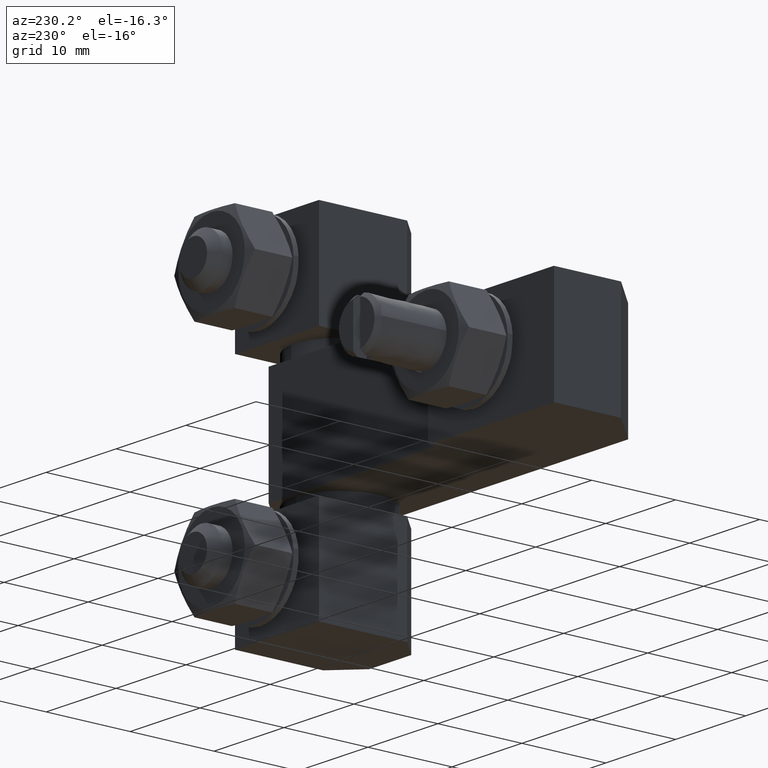
[diagram: clean part render]
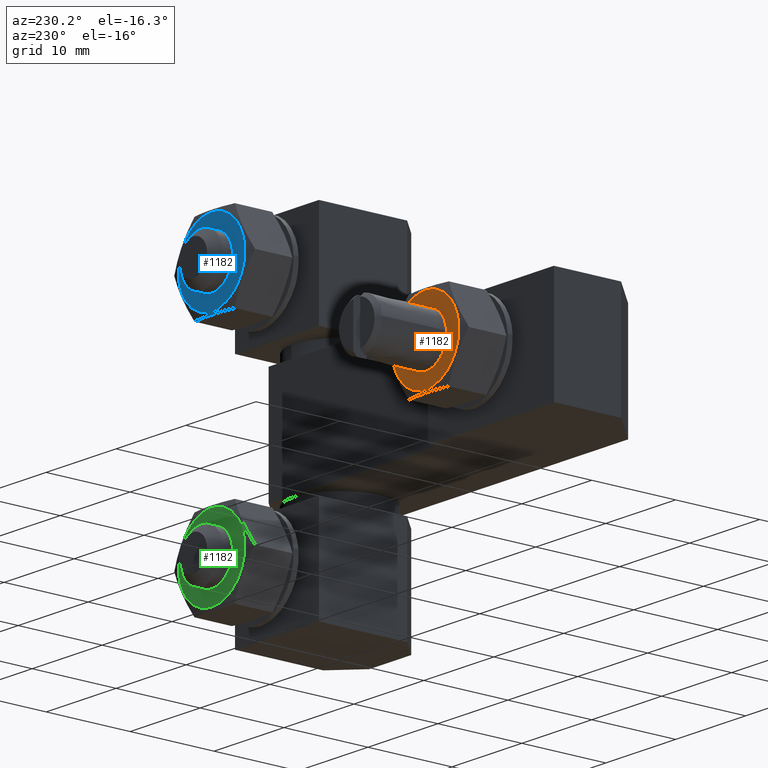
[diagram: same view with three faces highlighted in distinct colors, each labeled with its STEP entity id]
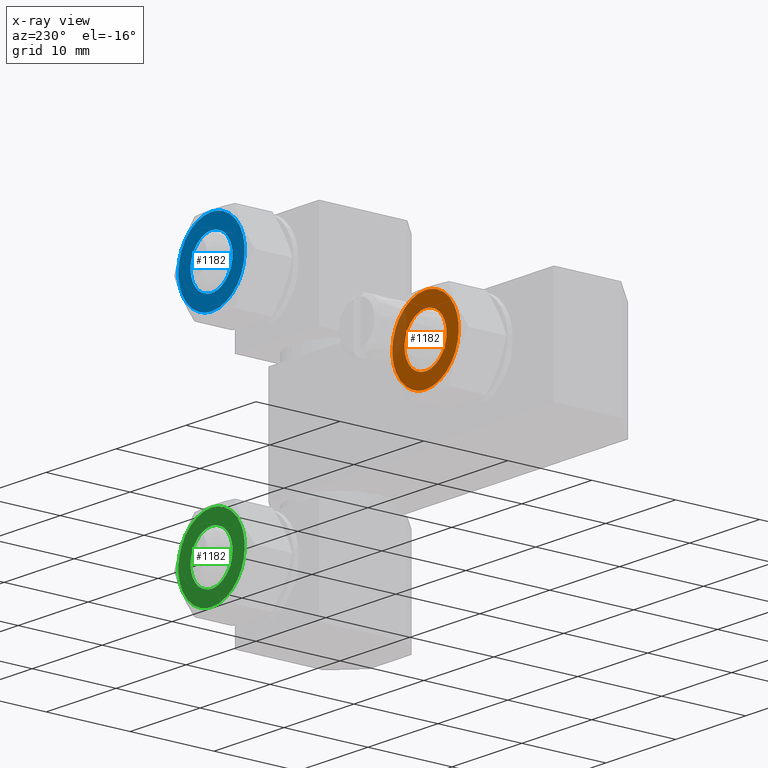
[diagram: x-ray of the same camera — body ghosted, the three highlighted faces saturated]
A machine part, auxiliary view with three faces highlighted in distinct colors.
The next image is the same camera in x-ray (body ghosted, the three faces saturated) — at least one of them is partly hidden behind the body in this view.
Their STEP definitions:

[orange] entity #1182 — the highlighted face is a freeform B-spline surface patch.
#741=CARTESIAN_POINT('',(9.932544E-014,15.300000561215050,1.249999276718710));
#742=VERTEX_POINT('',#741);
#743=CARTESIAN_POINT('',(-4.223919936372676,15.300000561211620,8.172788804313976));
#744=VERTEX_POINT('',#743);
#745=CARTESIAN_POINT('',(9.932544E-014,15.300000561215050,1.249999276718710));
#746=CARTESIAN_POINT('',(-4.750001008265811,15.300000561215056,1.249999276718710));
#747=CARTESIAN_POINT('',(-4.750001008265810,15.300000561215050,6.000000284984620));
#748=CARTESIAN_POINT('',(-4.750001008265810,15.300000561215047,7.150082587002821));
#749=CARTESIAN_POINT('',(-4.223919936372676,15.300000561211627,8.172788804313976));
#757=(BOUNDED_CURVE()B_SPLINE_CURVE(2,(#745,#746,#747,#748,#749),.UNSPECIFIED.,.F.,.U.)B_SPLINE_CURVE_WITH_KNOTS((3,2,3),(0.500000000000000,0.750000000000000,0.827800589169025),.UNSPECIFIED.)CURVE()GEOMETRIC_REPRESENTATION_ITEM()RATIONAL_B_SPLINE_CURVE((1.0,0.707106781186548,1.0,0.908850940050805,0.874433484631611))REPRESENTATION_ITEM(''));
#758=EDGE_CURVE('',#742,#744,#757,.T.);
#760=CARTESIAN_POINT('',(4.092739380840212,15.300000561214620,3.589192549170924));
#761=VERTEX_POINT('',#760);
#762=CARTESIAN_POINT('',(4.092739380840213,15.300000561214615,3.589192549170924));
#763=CARTESIAN_POINT('',(2.714849241231466,15.300000561215059,1.249999276718711));
#764=CARTESIAN_POINT('',(9.932544E-014,15.300000561215050,1.249999276718710));
#772=(BOUNDED_CURVE()B_SPLINE_CURVE(2,(#762,#763,#764),.UNSPECIFIED.,.F.,.U.)B_SPLINE_CURVE_WITH_KNOTS((3,3),(0.336609155411223,0.500000000000000),.UNSPECIFIED.)CURVE()GEOMETRIC_REPRESENTATION_ITEM()RATIONAL_B_SPLINE_CURVE((0.867367237173769,0.808575718414978,1.0))REPRESENTATION_ITEM(''));
#773=EDGE_CURVE('',#761,#742,#772,.T.);
#867=CARTESIAN_POINT('',(9.932544E-014,15.300000561215050,10.750001293250531));
#868=VERTEX_POINT('',#867);
#869=CARTESIAN_POINT('',(-4.223919936372676,15.300000561211618,8.172788804313976));
#870=CARTESIAN_POINT('',(-2.898199327888476,15.300000561215047,10.750001293250529));
#871=CARTESIAN_POINT('',(9.932544E-014,15.300000561215050,10.750001293250531));
#879=(BOUNDED_CURVE()B_SPLINE_CURVE(2,(#869,#870,#871),.UNSPECIFIED.,.F.,.U.)B_SPLINE_CURVE_WITH_KNOTS((3,3),(0.827800589169024,1.0),.UNSPECIFIED.)CURVE()GEOMETRIC_REPRESENTATION_ITEM()RATIONAL_B_SPLINE_CURVE((0.874433484631612,0.798255841135742,1.0))REPRESENTATION_ITEM(''));
#880=EDGE_CURVE('',#744,#868,#879,.T.);
#939=CARTESIAN_POINT('',(9.932544E-014,15.300000561215050,10.750001293250531));
#940=CARTESIAN_POINT('',(4.750001008266010,15.300000561215056,10.750001293250531));
#941=CARTESIAN_POINT('',(4.750001008266009,15.300000561215050,6.000000284984620));
#942=CARTESIAN_POINT('',(4.750001008266009,15.300000561215048,4.705001373782181));
#943=CARTESIAN_POINT('',(4.092739380840213,15.300000561214615,3.589192549170924));
#951=(BOUNDED_CURVE()B_SPLINE_CURVE(2,(#939,#940,#941,#942,#943),.UNSPECIFIED.,.F.,.U.)B_SPLINE_CURVE_WITH_KNOTS((3,2,3),(0.0,0.250000000000000,0.336609155411223),.UNSPECIFIED.)CURVE()GEOMETRIC_REPRESENTATION_ITEM()RATIONAL_B_SPLINE_CURVE((1.0,0.707106781186548,1.0,0.898531062771570,0.867367237173769))REPRESENTATION_ITEM(''));
#952=EDGE_CURVE('',#868,#761,#951,.T.);
#1017=CARTESIAN_POINT('',(2.994403946826906,15.300000561215050,5.816860130899042));
#1018=VERTEX_POINT('',#1017);
#1024=CARTESIAN_POINT('',(-0.000000782652990,15.300000561215050,3.000000284984540));
#1025=VERTEX_POINT('',#1024);
#1026=CARTESIAN_POINT('',(-0.000000782652990,15.300000561215050,3.000000284984540));
#1027=CARTESIAN_POINT('',(2.822122577804138,15.300000561215048,3.000000284984540));
#1028=CARTESIAN_POINT('',(2.994403946826906,15.300000561215052,5.816860130899042));
#1036=(BOUNDED_CURVE()B_SPLINE_CURVE(2,(#1026,#1027,#1028),.UNSPECIFIED.,.F.,.U.)B_SPLINE_CURVE_WITH_KNOTS((3,3),(0.500000000000000,0.739333277124436),.UNSPECIFIED.)CURVE()GEOMETRIC_REPRESENTATION_ITEM()RATIONAL_B_SPLINE_CURVE((1.0,0.719603624375408,0.976072716527199))REPRESENTATION_ITEM(''));
#1037=EDGE_CURVE('',#1025,#1018,#1036,.T.);
#1039=CARTESIAN_POINT('',(-2.979029361741232,15.300000561215050,6.354102988978008));
#1040=VERTEX_POINT('',#1039);
#1041=CARTESIAN_POINT('',(-2.979029361741232,15.300000561215052,6.354102988978009));
#1042=CARTESIAN_POINT('',(-3.000000782652990,15.300000561215047,6.177672643963709));
#1043=CARTESIAN_POINT('',(-3.000000782652990,15.300000561215050,6.000000284984540));
#1044=CARTESIAN_POINT('',(-3.000000782652990,15.300000561215056,3.000000284984540));
#1045=CARTESIAN_POINT('',(-0.000000782652990,15.300000561215050,3.000000284984540));
#1053=(BOUNDED_CURVE()B_SPLINE_CURVE(2,(#1041,#1042,#1043,#1044,#1045),.UNSPECIFIED.,.F.,.U.)B_SPLINE_CURVE_WITH_KNOTS((3,2,3),(0.229562473513013,0.250000000000000,0.500000000000000),.UNSPECIFIED.)CURVE()GEOMETRIC_REPRESENTATION_ITEM()RATIONAL_B_SPLINE_CURVE((0.956026754182728,0.976055948330564,1.0,0.707106781186548,1.0))REPRESENTATION_ITEM(''));
#1054=EDGE_CURVE('',#1040,#1025,#1053,.T.);
#1098=CARTESIAN_POINT('',(-0.000000782652990,15.300000561215050,9.000000284984541));
#1099=VERTEX_POINT('',#1098);
#1100=CARTESIAN_POINT('',(-0.000000782652990,15.300000561215050,9.000000284984541));
#1101=CARTESIAN_POINT('',(-2.664524360465312,15.300000561215057,9.000000284984541));
#1102=CARTESIAN_POINT('',(-2.979029361741232,15.300000561215056,6.354102988978008));
#1110=(BOUNDED_CURVE()B_SPLINE_CURVE(2,(#1100,#1101,#1102),.UNSPECIFIED.,.F.,.U.)B_SPLINE_CURVE_WITH_KNOTS((3,3),(0.0,0.229562473513013),.UNSPECIFIED.)CURVE()GEOMETRIC_REPRESENTATION_ITEM()RATIONAL_B_SPLINE_CURVE((1.0,0.731050832855983,0.956026754182728))REPRESENTATION_ITEM(''));
#1111=EDGE_CURVE('',#1099,#1040,#1110,.T.);
#1113=CARTESIAN_POINT('',(2.994403946826906,15.300000561215052,5.816860130899042));
#1114=CARTESIAN_POINT('',(2.999999217347011,15.300000561215057,5.908344735008918));
#1115=CARTESIAN_POINT('',(2.999999217347011,15.300000561215050,6.000000284984540));
#1116=CARTESIAN_POINT('',(2.999999217347010,15.300000561215056,9.000000284984541));
#1117=CARTESIAN_POINT('',(-0.000000782652990,15.300000561215050,9.000000284984541));
#1125=(BOUNDED_CURVE()B_SPLINE_CURVE(2,(#1113,#1114,#1115,#1116,#1117),.UNSPECIFIED.,.F.,.U.)B_SPLINE_CURVE_WITH_KNOTS((3,2,3),(0.739333277124436,0.750000000000000,1.0),.UNSPECIFIED.)CURVE()GEOMETRIC_REPRESENTATION_ITEM()RATIONAL_B_SPLINE_CURVE((0.976072716527199,0.987503156811140,1.0,0.707106781186548,1.0))REPRESENTATION_ITEM(''));
#1126=EDGE_CURVE('',#1018,#1099,#1125,.T.);
#1165=CARTESIAN_POINT('',(-5.224417158717642,15.300000561215050,11.224526018846561));
#1166=CARTESIAN_POINT('',(5.222500308697768,15.300000561215050,11.224526018846561));
#1167=CARTESIAN_POINT('',(-5.224417158717642,15.300000561215050,0.775473956566221));
#1168=CARTESIAN_POINT('',(5.222500308697768,15.300000561215050,0.775473956566221));
#1169=B_SPLINE_SURFACE_WITH_KNOTS('',1,1,((#1165,#1167),(#1166,#1168)),.UNSPECIFIED.,.F.,.F.,.U.,(2,2),(2,2),(0.0,10.446917467415410),(0.0,10.449052062280339),.UNSPECIFIED.);
#1170=ORIENTED_EDGE('',*,*,#952,.T.);
#1171=ORIENTED_EDGE('',*,*,#773,.T.);
#1172=ORIENTED_EDGE('',*,*,#758,.T.);
#1173=ORIENTED_EDGE('',*,*,#880,.T.);
#1174=EDGE_LOOP('',(#1170,#1171,#1172,#1173));
#1175=FACE_OUTER_BOUND('',#1174,.T.);
#1176=ORIENTED_EDGE('',*,*,#1037,.T.);
#1177=ORIENTED_EDGE('',*,*,#1126,.T.);
#1178=ORIENTED_EDGE('',*,*,#1111,.T.);
#1179=ORIENTED_EDGE('',*,*,#1054,.T.);
#1180=EDGE_LOOP('',(#1176,#1177,#1178,#1179));
#1181=FACE_BOUND('',#1180,.T.);
#1182=ADVANCED_FACE('',(#1175,#1181),#1169,.T.);

[blue] entity #1182 — the highlighted face is a freeform B-spline surface patch.
#741=CARTESIAN_POINT('',(9.932544E-014,15.300000561215050,1.249999276718710));
#742=VERTEX_POINT('',#741);
#743=CARTESIAN_POINT('',(-4.223919936372676,15.300000561211620,8.172788804313976));
#744=VERTEX_POINT('',#743);
#745=CARTESIAN_POINT('',(9.932544E-014,15.300000561215050,1.249999276718710));
#746=CARTESIAN_POINT('',(-4.750001008265811,15.300000561215056,1.249999276718710));
#747=CARTESIAN_POINT('',(-4.750001008265810,15.300000561215050,6.000000284984620));
#748=CARTESIAN_POINT('',(-4.750001008265810,15.300000561215047,7.150082587002821));
#749=CARTESIAN_POINT('',(-4.223919936372676,15.300000561211627,8.172788804313976));
#757=(BOUNDED_CURVE()B_SPLINE_CURVE(2,(#745,#746,#747,#748,#749),.UNSPECIFIED.,.F.,.U.)B_SPLINE_CURVE_WITH_KNOTS((3,2,3),(0.500000000000000,0.750000000000000,0.827800589169025),.UNSPECIFIED.)CURVE()GEOMETRIC_REPRESENTATION_ITEM()RATIONAL_B_SPLINE_CURVE((1.0,0.707106781186548,1.0,0.908850940050805,0.874433484631611))REPRESENTATION_ITEM(''));
#758=EDGE_CURVE('',#742,#744,#757,.T.);
#760=CARTESIAN_POINT('',(4.092739380840212,15.300000561214620,3.589192549170924));
#761=VERTEX_POINT('',#760);
#762=CARTESIAN_POINT('',(4.092739380840213,15.300000561214615,3.589192549170924));
#763=CARTESIAN_POINT('',(2.714849241231466,15.300000561215059,1.249999276718711));
#764=CARTESIAN_POINT('',(9.932544E-014,15.300000561215050,1.249999276718710));
#772=(BOUNDED_CURVE()B_SPLINE_CURVE(2,(#762,#763,#764),.UNSPECIFIED.,.F.,.U.)B_SPLINE_CURVE_WITH_KNOTS((3,3),(0.336609155411223,0.500000000000000),.UNSPECIFIED.)CURVE()GEOMETRIC_REPRESENTATION_ITEM()RATIONAL_B_SPLINE_CURVE((0.867367237173769,0.808575718414978,1.0))REPRESENTATION_ITEM(''));
#773=EDGE_CURVE('',#761,#742,#772,.T.);
#867=CARTESIAN_POINT('',(9.932544E-014,15.300000561215050,10.750001293250531));
#868=VERTEX_POINT('',#867);
#869=CARTESIAN_POINT('',(-4.223919936372676,15.300000561211618,8.172788804313976));
#870=CARTESIAN_POINT('',(-2.898199327888476,15.300000561215047,10.750001293250529));
#871=CARTESIAN_POINT('',(9.932544E-014,15.300000561215050,10.750001293250531));
#879=(BOUNDED_CURVE()B_SPLINE_CURVE(2,(#869,#870,#871),.UNSPECIFIED.,.F.,.U.)B_SPLINE_CURVE_WITH_KNOTS((3,3),(0.827800589169024,1.0),.UNSPECIFIED.)CURVE()GEOMETRIC_REPRESENTATION_ITEM()RATIONAL_B_SPLINE_CURVE((0.874433484631612,0.798255841135742,1.0))REPRESENTATION_ITEM(''));
#880=EDGE_CURVE('',#744,#868,#879,.T.);
#939=CARTESIAN_POINT('',(9.932544E-014,15.300000561215050,10.750001293250531));
#940=CARTESIAN_POINT('',(4.750001008266010,15.300000561215056,10.750001293250531));
#941=CARTESIAN_POINT('',(4.750001008266009,15.300000561215050,6.000000284984620));
#942=CARTESIAN_POINT('',(4.750001008266009,15.300000561215048,4.705001373782181));
#943=CARTESIAN_POINT('',(4.092739380840213,15.300000561214615,3.589192549170924));
#951=(BOUNDED_CURVE()B_SPLINE_CURVE(2,(#939,#940,#941,#942,#943),.UNSPECIFIED.,.F.,.U.)B_SPLINE_CURVE_WITH_KNOTS((3,2,3),(0.0,0.250000000000000,0.336609155411223),.UNSPECIFIED.)CURVE()GEOMETRIC_REPRESENTATION_ITEM()RATIONAL_B_SPLINE_CURVE((1.0,0.707106781186548,1.0,0.898531062771570,0.867367237173769))REPRESENTATION_ITEM(''));
#952=EDGE_CURVE('',#868,#761,#951,.T.);
#1017=CARTESIAN_POINT('',(2.994403946826906,15.300000561215050,5.816860130899042));
#1018=VERTEX_POINT('',#1017);
#1024=CARTESIAN_POINT('',(-0.000000782652990,15.300000561215050,3.000000284984540));
#1025=VERTEX_POINT('',#1024);
#1026=CARTESIAN_POINT('',(-0.000000782652990,15.300000561215050,3.000000284984540));
#1027=CARTESIAN_POINT('',(2.822122577804138,15.300000561215048,3.000000284984540));
#1028=CARTESIAN_POINT('',(2.994403946826906,15.300000561215052,5.816860130899042));
#1036=(BOUNDED_CURVE()B_SPLINE_CURVE(2,(#1026,#1027,#1028),.UNSPECIFIED.,.F.,.U.)B_SPLINE_CURVE_WITH_KNOTS((3,3),(0.500000000000000,0.739333277124436),.UNSPECIFIED.)CURVE()GEOMETRIC_REPRESENTATION_ITEM()RATIONAL_B_SPLINE_CURVE((1.0,0.719603624375408,0.976072716527199))REPRESENTATION_ITEM(''));
#1037=EDGE_CURVE('',#1025,#1018,#1036,.T.);
#1039=CARTESIAN_POINT('',(-2.979029361741232,15.300000561215050,6.354102988978008));
#1040=VERTEX_POINT('',#1039);
#1041=CARTESIAN_POINT('',(-2.979029361741232,15.300000561215052,6.354102988978009));
#1042=CARTESIAN_POINT('',(-3.000000782652990,15.300000561215047,6.177672643963709));
#1043=CARTESIAN_POINT('',(-3.000000782652990,15.300000561215050,6.000000284984540));
#1044=CARTESIAN_POINT('',(-3.000000782652990,15.300000561215056,3.000000284984540));
#1045=CARTESIAN_POINT('',(-0.000000782652990,15.300000561215050,3.000000284984540));
#1053=(BOUNDED_CURVE()B_SPLINE_CURVE(2,(#1041,#1042,#1043,#1044,#1045),.UNSPECIFIED.,.F.,.U.)B_SPLINE_CURVE_WITH_KNOTS((3,2,3),(0.229562473513013,0.250000000000000,0.500000000000000),.UNSPECIFIED.)CURVE()GEOMETRIC_REPRESENTATION_ITEM()RATIONAL_B_SPLINE_CURVE((0.956026754182728,0.976055948330564,1.0,0.707106781186548,1.0))REPRESENTATION_ITEM(''));
#1054=EDGE_CURVE('',#1040,#1025,#1053,.T.);
#1098=CARTESIAN_POINT('',(-0.000000782652990,15.300000561215050,9.000000284984541));
#1099=VERTEX_POINT('',#1098);
#1100=CARTESIAN_POINT('',(-0.000000782652990,15.300000561215050,9.000000284984541));
#1101=CARTESIAN_POINT('',(-2.664524360465312,15.300000561215057,9.000000284984541));
#1102=CARTESIAN_POINT('',(-2.979029361741232,15.300000561215056,6.354102988978008));
#1110=(BOUNDED_CURVE()B_SPLINE_CURVE(2,(#1100,#1101,#1102),.UNSPECIFIED.,.F.,.U.)B_SPLINE_CURVE_WITH_KNOTS((3,3),(0.0,0.229562473513013),.UNSPECIFIED.)CURVE()GEOMETRIC_REPRESENTATION_ITEM()RATIONAL_B_SPLINE_CURVE((1.0,0.731050832855983,0.956026754182728))REPRESENTATION_ITEM(''));
#1111=EDGE_CURVE('',#1099,#1040,#1110,.T.);
#1113=CARTESIAN_POINT('',(2.994403946826906,15.300000561215052,5.816860130899042));
#1114=CARTESIAN_POINT('',(2.999999217347011,15.300000561215057,5.908344735008918));
#1115=CARTESIAN_POINT('',(2.999999217347011,15.300000561215050,6.000000284984540));
#1116=CARTESIAN_POINT('',(2.999999217347010,15.300000561215056,9.000000284984541));
#1117=CARTESIAN_POINT('',(-0.000000782652990,15.300000561215050,9.000000284984541));
#1125=(BOUNDED_CURVE()B_SPLINE_CURVE(2,(#1113,#1114,#1115,#1116,#1117),.UNSPECIFIED.,.F.,.U.)B_SPLINE_CURVE_WITH_KNOTS((3,2,3),(0.739333277124436,0.750000000000000,1.0),.UNSPECIFIED.)CURVE()GEOMETRIC_REPRESENTATION_ITEM()RATIONAL_B_SPLINE_CURVE((0.976072716527199,0.987503156811140,1.0,0.707106781186548,1.0))REPRESENTATION_ITEM(''));
#1126=EDGE_CURVE('',#1018,#1099,#1125,.T.);
#1165=CARTESIAN_POINT('',(-5.224417158717642,15.300000561215050,11.224526018846561));
#1166=CARTESIAN_POINT('',(5.222500308697768,15.300000561215050,11.224526018846561));
#1167=CARTESIAN_POINT('',(-5.224417158717642,15.300000561215050,0.775473956566221));
#1168=CARTESIAN_POINT('',(5.222500308697768,15.300000561215050,0.775473956566221));
#1169=B_SPLINE_SURFACE_WITH_KNOTS('',1,1,((#1165,#1167),(#1166,#1168)),.UNSPECIFIED.,.F.,.F.,.U.,(2,2),(2,2),(0.0,10.446917467415410),(0.0,10.449052062280339),.UNSPECIFIED.);
#1170=ORIENTED_EDGE('',*,*,#952,.T.);
#1171=ORIENTED_EDGE('',*,*,#773,.T.);
#1172=ORIENTED_EDGE('',*,*,#758,.T.);
#1173=ORIENTED_EDGE('',*,*,#880,.T.);
#1174=EDGE_LOOP('',(#1170,#1171,#1172,#1173));
#1175=FACE_OUTER_BOUND('',#1174,.T.);
#1176=ORIENTED_EDGE('',*,*,#1037,.T.);
#1177=ORIENTED_EDGE('',*,*,#1126,.T.);
#1178=ORIENTED_EDGE('',*,*,#1111,.T.);
#1179=ORIENTED_EDGE('',*,*,#1054,.T.);
#1180=EDGE_LOOP('',(#1176,#1177,#1178,#1179));
#1181=FACE_BOUND('',#1180,.T.);
#1182=ADVANCED_FACE('',(#1175,#1181),#1169,.T.);

[green] entity #1182 — the highlighted face is a freeform B-spline surface patch.
#741=CARTESIAN_POINT('',(9.932544E-014,15.300000561215050,1.249999276718710));
#742=VERTEX_POINT('',#741);
#743=CARTESIAN_POINT('',(-4.223919936372676,15.300000561211620,8.172788804313976));
#744=VERTEX_POINT('',#743);
#745=CARTESIAN_POINT('',(9.932544E-014,15.300000561215050,1.249999276718710));
#746=CARTESIAN_POINT('',(-4.750001008265811,15.300000561215056,1.249999276718710));
#747=CARTESIAN_POINT('',(-4.750001008265810,15.300000561215050,6.000000284984620));
#748=CARTESIAN_POINT('',(-4.750001008265810,15.300000561215047,7.150082587002821));
#749=CARTESIAN_POINT('',(-4.223919936372676,15.300000561211627,8.172788804313976));
#757=(BOUNDED_CURVE()B_SPLINE_CURVE(2,(#745,#746,#747,#748,#749),.UNSPECIFIED.,.F.,.U.)B_SPLINE_CURVE_WITH_KNOTS((3,2,3),(0.500000000000000,0.750000000000000,0.827800589169025),.UNSPECIFIED.)CURVE()GEOMETRIC_REPRESENTATION_ITEM()RATIONAL_B_SPLINE_CURVE((1.0,0.707106781186548,1.0,0.908850940050805,0.874433484631611))REPRESENTATION_ITEM(''));
#758=EDGE_CURVE('',#742,#744,#757,.T.);
#760=CARTESIAN_POINT('',(4.092739380840212,15.300000561214620,3.589192549170924));
#761=VERTEX_POINT('',#760);
#762=CARTESIAN_POINT('',(4.092739380840213,15.300000561214615,3.589192549170924));
#763=CARTESIAN_POINT('',(2.714849241231466,15.300000561215059,1.249999276718711));
#764=CARTESIAN_POINT('',(9.932544E-014,15.300000561215050,1.249999276718710));
#772=(BOUNDED_CURVE()B_SPLINE_CURVE(2,(#762,#763,#764),.UNSPECIFIED.,.F.,.U.)B_SPLINE_CURVE_WITH_KNOTS((3,3),(0.336609155411223,0.500000000000000),.UNSPECIFIED.)CURVE()GEOMETRIC_REPRESENTATION_ITEM()RATIONAL_B_SPLINE_CURVE((0.867367237173769,0.808575718414978,1.0))REPRESENTATION_ITEM(''));
#773=EDGE_CURVE('',#761,#742,#772,.T.);
#867=CARTESIAN_POINT('',(9.932544E-014,15.300000561215050,10.750001293250531));
#868=VERTEX_POINT('',#867);
#869=CARTESIAN_POINT('',(-4.223919936372676,15.300000561211618,8.172788804313976));
#870=CARTESIAN_POINT('',(-2.898199327888476,15.300000561215047,10.750001293250529));
#871=CARTESIAN_POINT('',(9.932544E-014,15.300000561215050,10.750001293250531));
#879=(BOUNDED_CURVE()B_SPLINE_CURVE(2,(#869,#870,#871),.UNSPECIFIED.,.F.,.U.)B_SPLINE_CURVE_WITH_KNOTS((3,3),(0.827800589169024,1.0),.UNSPECIFIED.)CURVE()GEOMETRIC_REPRESENTATION_ITEM()RATIONAL_B_SPLINE_CURVE((0.874433484631612,0.798255841135742,1.0))REPRESENTATION_ITEM(''));
#880=EDGE_CURVE('',#744,#868,#879,.T.);
#939=CARTESIAN_POINT('',(9.932544E-014,15.300000561215050,10.750001293250531));
#940=CARTESIAN_POINT('',(4.750001008266010,15.300000561215056,10.750001293250531));
#941=CARTESIAN_POINT('',(4.750001008266009,15.300000561215050,6.000000284984620));
#942=CARTESIAN_POINT('',(4.750001008266009,15.300000561215048,4.705001373782181));
#943=CARTESIAN_POINT('',(4.092739380840213,15.300000561214615,3.589192549170924));
#951=(BOUNDED_CURVE()B_SPLINE_CURVE(2,(#939,#940,#941,#942,#943),.UNSPECIFIED.,.F.,.U.)B_SPLINE_CURVE_WITH_KNOTS((3,2,3),(0.0,0.250000000000000,0.336609155411223),.UNSPECIFIED.)CURVE()GEOMETRIC_REPRESENTATION_ITEM()RATIONAL_B_SPLINE_CURVE((1.0,0.707106781186548,1.0,0.898531062771570,0.867367237173769))REPRESENTATION_ITEM(''));
#952=EDGE_CURVE('',#868,#761,#951,.T.);
#1017=CARTESIAN_POINT('',(2.994403946826906,15.300000561215050,5.816860130899042));
#1018=VERTEX_POINT('',#1017);
#1024=CARTESIAN_POINT('',(-0.000000782652990,15.300000561215050,3.000000284984540));
#1025=VERTEX_POINT('',#1024);
#1026=CARTESIAN_POINT('',(-0.000000782652990,15.300000561215050,3.000000284984540));
#1027=CARTESIAN_POINT('',(2.822122577804138,15.300000561215048,3.000000284984540));
#1028=CARTESIAN_POINT('',(2.994403946826906,15.300000561215052,5.816860130899042));
#1036=(BOUNDED_CURVE()B_SPLINE_CURVE(2,(#1026,#1027,#1028),.UNSPECIFIED.,.F.,.U.)B_SPLINE_CURVE_WITH_KNOTS((3,3),(0.500000000000000,0.739333277124436),.UNSPECIFIED.)CURVE()GEOMETRIC_REPRESENTATION_ITEM()RATIONAL_B_SPLINE_CURVE((1.0,0.719603624375408,0.976072716527199))REPRESENTATION_ITEM(''));
#1037=EDGE_CURVE('',#1025,#1018,#1036,.T.);
#1039=CARTESIAN_POINT('',(-2.979029361741232,15.300000561215050,6.354102988978008));
#1040=VERTEX_POINT('',#1039);
#1041=CARTESIAN_POINT('',(-2.979029361741232,15.300000561215052,6.354102988978009));
#1042=CARTESIAN_POINT('',(-3.000000782652990,15.300000561215047,6.177672643963709));
#1043=CARTESIAN_POINT('',(-3.000000782652990,15.300000561215050,6.000000284984540));
#1044=CARTESIAN_POINT('',(-3.000000782652990,15.300000561215056,3.000000284984540));
#1045=CARTESIAN_POINT('',(-0.000000782652990,15.300000561215050,3.000000284984540));
#1053=(BOUNDED_CURVE()B_SPLINE_CURVE(2,(#1041,#1042,#1043,#1044,#1045),.UNSPECIFIED.,.F.,.U.)B_SPLINE_CURVE_WITH_KNOTS((3,2,3),(0.229562473513013,0.250000000000000,0.500000000000000),.UNSPECIFIED.)CURVE()GEOMETRIC_REPRESENTATION_ITEM()RATIONAL_B_SPLINE_CURVE((0.956026754182728,0.976055948330564,1.0,0.707106781186548,1.0))REPRESENTATION_ITEM(''));
#1054=EDGE_CURVE('',#1040,#1025,#1053,.T.);
#1098=CARTESIAN_POINT('',(-0.000000782652990,15.300000561215050,9.000000284984541));
#1099=VERTEX_POINT('',#1098);
#1100=CARTESIAN_POINT('',(-0.000000782652990,15.300000561215050,9.000000284984541));
#1101=CARTESIAN_POINT('',(-2.664524360465312,15.300000561215057,9.000000284984541));
#1102=CARTESIAN_POINT('',(-2.979029361741232,15.300000561215056,6.354102988978008));
#1110=(BOUNDED_CURVE()B_SPLINE_CURVE(2,(#1100,#1101,#1102),.UNSPECIFIED.,.F.,.U.)B_SPLINE_CURVE_WITH_KNOTS((3,3),(0.0,0.229562473513013),.UNSPECIFIED.)CURVE()GEOMETRIC_REPRESENTATION_ITEM()RATIONAL_B_SPLINE_CURVE((1.0,0.731050832855983,0.956026754182728))REPRESENTATION_ITEM(''));
#1111=EDGE_CURVE('',#1099,#1040,#1110,.T.);
#1113=CARTESIAN_POINT('',(2.994403946826906,15.300000561215052,5.816860130899042));
#1114=CARTESIAN_POINT('',(2.999999217347011,15.300000561215057,5.908344735008918));
#1115=CARTESIAN_POINT('',(2.999999217347011,15.300000561215050,6.000000284984540));
#1116=CARTESIAN_POINT('',(2.999999217347010,15.300000561215056,9.000000284984541));
#1117=CARTESIAN_POINT('',(-0.000000782652990,15.300000561215050,9.000000284984541));
#1125=(BOUNDED_CURVE()B_SPLINE_CURVE(2,(#1113,#1114,#1115,#1116,#1117),.UNSPECIFIED.,.F.,.U.)B_SPLINE_CURVE_WITH_KNOTS((3,2,3),(0.739333277124436,0.750000000000000,1.0),.UNSPECIFIED.)CURVE()GEOMETRIC_REPRESENTATION_ITEM()RATIONAL_B_SPLINE_CURVE((0.976072716527199,0.987503156811140,1.0,0.707106781186548,1.0))REPRESENTATION_ITEM(''));
#1126=EDGE_CURVE('',#1018,#1099,#1125,.T.);
#1165=CARTESIAN_POINT('',(-5.224417158717642,15.300000561215050,11.224526018846561));
#1166=CARTESIAN_POINT('',(5.222500308697768,15.300000561215050,11.224526018846561));
#1167=CARTESIAN_POINT('',(-5.224417158717642,15.300000561215050,0.775473956566221));
#1168=CARTESIAN_POINT('',(5.222500308697768,15.300000561215050,0.775473956566221));
#1169=B_SPLINE_SURFACE_WITH_KNOTS('',1,1,((#1165,#1167),(#1166,#1168)),.UNSPECIFIED.,.F.,.F.,.U.,(2,2),(2,2),(0.0,10.446917467415410),(0.0,10.449052062280339),.UNSPECIFIED.);
#1170=ORIENTED_EDGE('',*,*,#952,.T.);
#1171=ORIENTED_EDGE('',*,*,#773,.T.);
#1172=ORIENTED_EDGE('',*,*,#758,.T.);
#1173=ORIENTED_EDGE('',*,*,#880,.T.);
#1174=EDGE_LOOP('',(#1170,#1171,#1172,#1173));
#1175=FACE_OUTER_BOUND('',#1174,.T.);
#1176=ORIENTED_EDGE('',*,*,#1037,.T.);
#1177=ORIENTED_EDGE('',*,*,#1126,.T.);
#1178=ORIENTED_EDGE('',*,*,#1111,.T.);
#1179=ORIENTED_EDGE('',*,*,#1054,.T.);
#1180=EDGE_LOOP('',(#1176,#1177,#1178,#1179));
#1181=FACE_BOUND('',#1180,.T.);
#1182=ADVANCED_FACE('',(#1175,#1181),#1169,.T.);